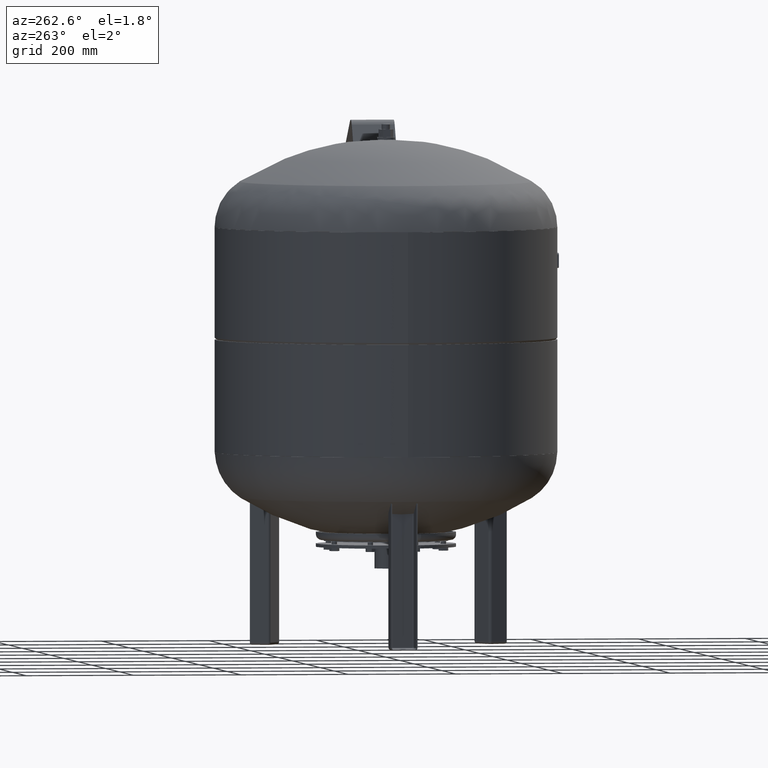
[diagram: clean part render]
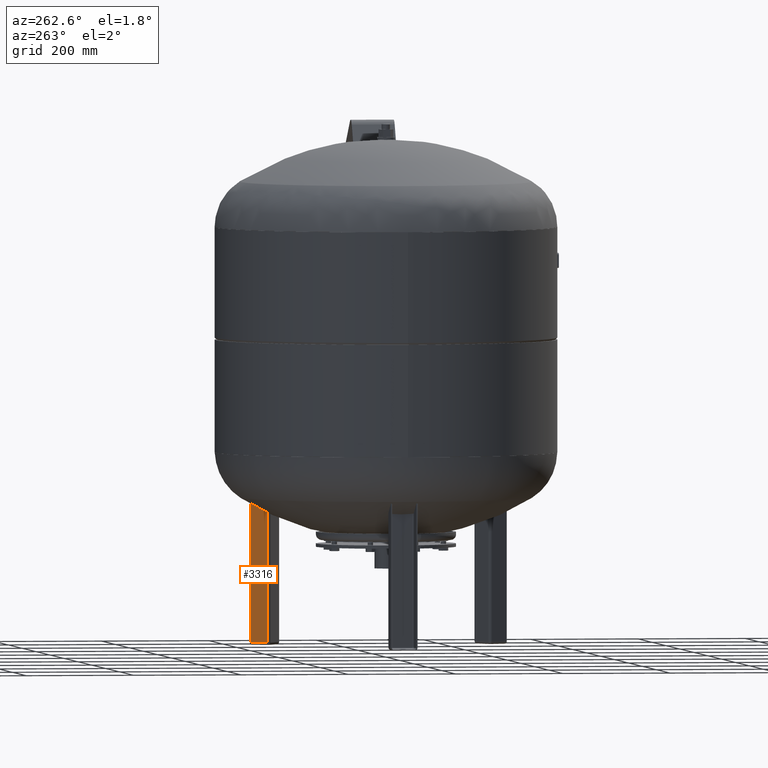
[diagram: same view with one face highlighted and labeled with its STEP entity id]
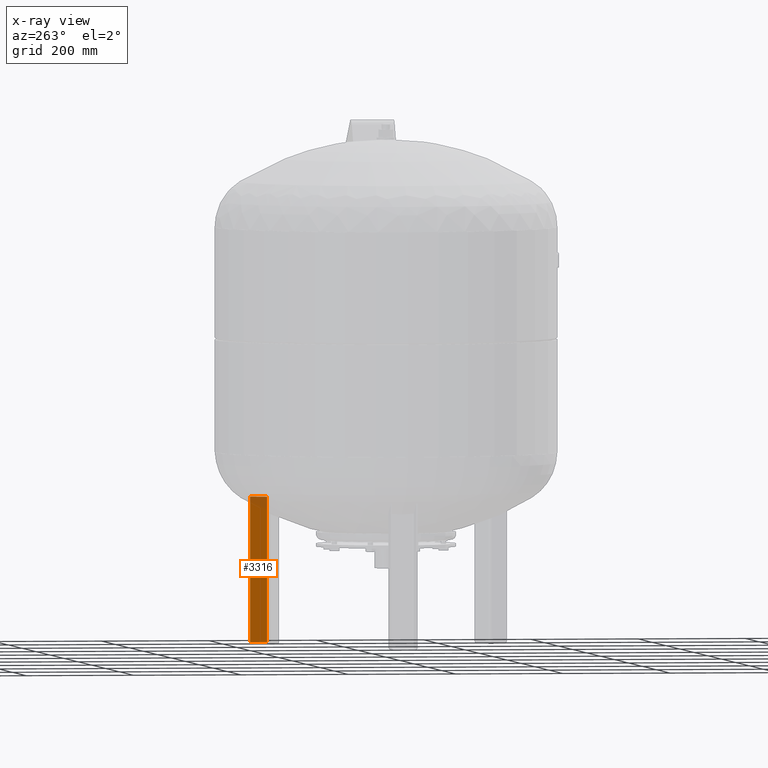
[diagram: x-ray of the same camera — body ghosted, the highlighted face saturated]
A machine part, auxiliary view. The second image highlights one B-rep face of the part: STEP entity #3316.
The next image is the same camera in x-ray: the body ghosted, the highlighted face saturated — about 6% of this face is hidden behind the body in this view.
In plain terms, the highlighted planar face has unit normal (-0.866, 0.5, 0).
Its self-contained STEP definition (entity closure, byte-faithful):
#2378=CARTESIAN_POINT('',(109.099364905389080,238.965643089630760,274.0));
#2379=VERTEX_POINT('',#2378);
#2387=CARTESIAN_POINT('',(92.099364905389081,209.520779360959840,274.0));
#2388=VERTEX_POINT('',#2387);
#2389=CARTESIAN_POINT('',(92.099364905389081,209.520779360959840,274.0));
#2390=DIRECTION('',(0.500000000000000,0.866025403784439,0.0));
#2391=VECTOR('',#2390,34.000000000000007);
#2392=LINE('',#2389,#2391);
#2393=EDGE_CURVE('',#2388,#2379,#2392,.T.);
#2823=CARTESIAN_POINT('',(109.099364905389070,238.965643089630760,5.000000000000004));
#2824=VERTEX_POINT('',#2823);
#2851=CARTESIAN_POINT('',(109.099364905389070,238.965643089630760,5.000000000000004));
#2852=DIRECTION('',(0.0,0.0,1.0));
#2853=VECTOR('',#2852,269.0);
#2854=LINE('',#2851,#2853);
#2855=EDGE_CURVE('',#2824,#2379,#2854,.T.);
#3051=CARTESIAN_POINT('',(92.099364905389081,209.520779360959840,5.000000000000004));
#3052=VERTEX_POINT('',#3051);
#3060=CARTESIAN_POINT('',(92.099364905389081,209.520779360959840,5.000000000000004));
#3061=DIRECTION('',(0.500000000000000,0.866025403784439,0.0));
#3062=VECTOR('',#3061,34.0);
#3063=LINE('',#3060,#3062);
#3064=EDGE_CURVE('',#3052,#2824,#3063,.T.);
#3186=CARTESIAN_POINT('',(92.099364905389081,209.520779360959840,5.000000000000004));
#3187=DIRECTION('',(0.0,0.0,1.0));
#3188=VECTOR('',#3187,269.0);
#3189=LINE('',#3186,#3188);
#3190=EDGE_CURVE('',#3052,#2388,#3189,.T.);
#3305=CARTESIAN_POINT('',(89.599364905389081,205.190652342037650,4.592425E-015));
#3306=DIRECTION('',(-0.866025403784439,0.500000000000000,1.836970E-016));
#3307=DIRECTION('',(-0.500000000000000,-0.866025403784439,-3.059170E-032));
#3308=AXIS2_PLACEMENT_3D('',#3305,#3306,#3307);
#3309=PLANE('',#3308);
#3310=ORIENTED_EDGE('',*,*,#2855,.F.);
#3311=ORIENTED_EDGE('',*,*,#3064,.F.);
#3312=ORIENTED_EDGE('',*,*,#3190,.T.);
#3313=ORIENTED_EDGE('',*,*,#2393,.T.);
#3314=EDGE_LOOP('',(#3310,#3311,#3312,#3313));
#3315=FACE_OUTER_BOUND('',#3314,.T.);
#3316=ADVANCED_FACE('',(#3315),#3309,.T.);